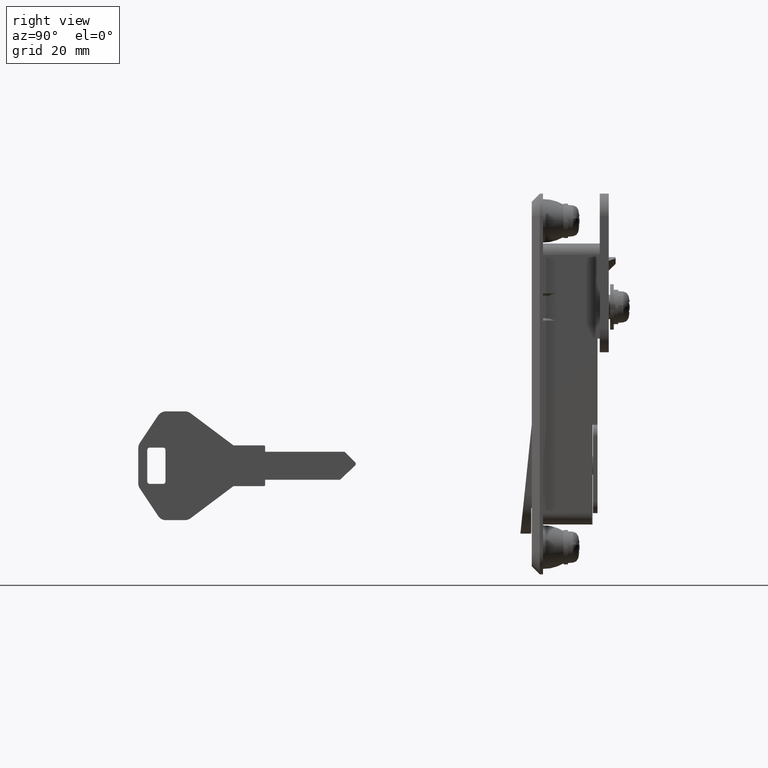
[diagram: clean part render]
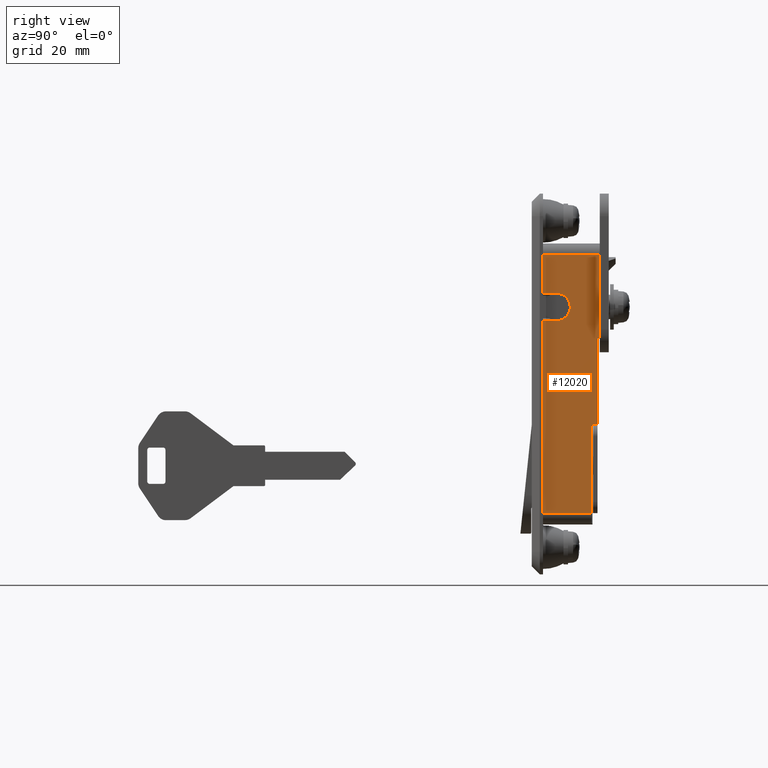
[diagram: same view with one face highlighted and labeled with its STEP entity id]
A machine part, right view. The second image highlights one B-rep face of the part: STEP entity #12020.
In plain terms, the highlighted face is a freeform B-spline surface patch.
Its self-contained STEP definition (entity closure, byte-faithful):
#7672=CARTESIAN_POINT('',(-7.461336553240212,-11.500000000031470,2.200875132956939));
#7673=VERTEX_POINT('',#7672);
#7674=CARTESIAN_POINT('',(-9.500000000003920,-11.499999999997261,2.999999999982210));
#7675=VERTEX_POINT('',#7674);
#7676=CARTESIAN_POINT('',(-7.461336553240212,-11.500000000031466,2.200875132956939));
#7677=CARTESIAN_POINT('',(-8.324045918668960,-11.499999999999126,2.999999999984922));
#7678=CARTESIAN_POINT('',(-9.500000000003920,-11.499999999997261,2.999999999982210));
#7686=(BOUNDED_CURVE()B_SPLINE_CURVE(2,(#7676,#7677,#7678),.UNSPECIFIED.,.F.,.U.)B_SPLINE_CURVE_WITH_KNOTS((3,3),(0.763515324977395,1.0),.UNSPECIFIED.)CURVE()GEOMETRIC_REPRESENTATION_ITEM()RATIONAL_B_SPLINE_CURVE((0.944767897863284,0.904951183457958,1.0))REPRESENTATION_ITEM(''));
#7687=EDGE_CURVE('',#7673,#7675,#7686,.T.);
#7721=CARTESIAN_POINT('',(-9.499999999995680,-11.499999999970139,-2.999999999964235));
#7722=VERTEX_POINT('',#7721);
#7736=CARTESIAN_POINT('',(-6.505595604748608,-11.500000000000570,-0.183145618572876));
#7737=VERTEX_POINT('',#7736);
#7738=CARTESIAN_POINT('',(-9.499999999995680,-11.499999999970139,-2.999999999964235));
#7739=CARTESIAN_POINT('',(-7.767949192439752,-11.500000000000000,-2.999999999983148));
#7740=CARTESIAN_POINT('',(-6.901923788660281,-11.500000000000000,-1.499999999990244));
#7741=CARTESIAN_POINT('',(-6.548720673422954,-11.499999999999998,-0.888234259006970));
#7742=CARTESIAN_POINT('',(-6.505595604748609,-11.500000000000570,-0.183145618572876));
#7750=(BOUNDED_CURVE()B_SPLINE_CURVE(2,(#7738,#7739,#7740,#7741,#7742),.UNSPECIFIED.,.F.,.U.)B_SPLINE_CURVE_WITH_KNOTS((3,2,3),(0.0,0.333333333333333,0.480995922515333),.UNSPECIFIED.)CURVE()GEOMETRIC_REPRESENTATION_ITEM()RATIONAL_B_SPLINE_CURVE((1.0,0.866025403784330,1.0,0.940650892714544,0.933883642513552))REPRESENTATION_ITEM(''));
#7751=EDGE_CURVE('',#7722,#7737,#7750,.T.);
#7844=CARTESIAN_POINT('',(-6.505595604748608,-11.500000000000572,-0.183145618572876));
#7845=CARTESIAN_POINT('',(-6.450475029979614,-11.500000000000000,0.718067812943795));
#7846=CARTESIAN_POINT('',(-6.901923788662241,-11.500000000000000,1.499999999994433));
#7847=CARTESIAN_POINT('',(-7.128659119388681,-11.500000000000002,1.892717112682770));
#7848=CARTESIAN_POINT('',(-7.461336553240213,-11.500000000031470,2.200875132956938));
#7856=(BOUNDED_CURVE()B_SPLINE_CURVE(2,(#7844,#7845,#7846,#7847,#7848),.UNSPECIFIED.,.F.,.U.)B_SPLINE_CURVE_WITH_KNOTS((3,2,3),(0.480995922515333,0.666666666666667,0.763515324977395),.UNSPECIFIED.)CURVE()GEOMETRIC_REPRESENTATION_ITEM()RATIONAL_B_SPLINE_CURVE((0.933883642513552,0.925374511069786,1.0,0.961074220326372,0.944767897863283))REPRESENTATION_ITEM(''));
#7857=EDGE_CURVE('',#7737,#7673,#7856,.T.);
#9687=CARTESIAN_POINT('',(-12.500000000000000,-11.500000000000000,11.500000000000400));
#9688=VERTEX_POINT('',#9687);
#9704=CARTESIAN_POINT('',(0.0,-11.500000000000000,11.500000000000400));
#9705=VERTEX_POINT('',#9704);
#9706=CARTESIAN_POINT('',(0.0,-11.500000000000000,11.500000000000400));
#9707=CARTESIAN_POINT('',(-12.500000000000000,-11.500000000000000,11.500000000000400));
#9708=QUASI_UNIFORM_CURVE('',1,(#9706,#9707),.UNSPECIFIED.,.F.,.U.);
#9709=EDGE_CURVE('',#9705,#9688,#9708,.T.);
#9809=CARTESIAN_POINT('',(-1.800000000000095,-11.500000000000000,-45.500000000000000));
#9810=VERTEX_POINT('',#9809);
#9826=CARTESIAN_POINT('',(-12.500000000000000,-11.500000000000000,-45.500000000000000));
#9827=VERTEX_POINT('',#9826);
#9828=CARTESIAN_POINT('',(-12.500000000000000,-11.500000000000000,-45.500000000000000));
#9829=CARTESIAN_POINT('',(-1.800000000000095,-11.500000000000000,-45.500000000000000));
#9830=QUASI_UNIFORM_CURVE('',1,(#9828,#9829),.UNSPECIFIED.,.F.,.U.);
#9831=EDGE_CURVE('',#9827,#9810,#9830,.T.);
#10492=CARTESIAN_POINT('',(-12.500000000000000,-11.500000000000000,-3.000000000009325));
#10493=VERTEX_POINT('',#10492);
#10494=CARTESIAN_POINT('',(-12.500000000000000,-11.500000000000000,-3.000000000009325));
#10495=CARTESIAN_POINT('',(-9.499999999995680,-11.499999999970139,-2.999999999964235));
#10496=QUASI_UNIFORM_CURVE('',1,(#10494,#10495),.UNSPECIFIED.,.F.,.U.);
#10497=EDGE_CURVE('',#10493,#7722,#10496,.T.);
#10528=CARTESIAN_POINT('',(-12.500000000000000,-11.500000000000000,2.999999999981980));
#10529=VERTEX_POINT('',#10528);
#10530=CARTESIAN_POINT('',(-9.500000000003920,-11.499999999997261,2.999999999982210));
#10531=CARTESIAN_POINT('',(-12.500000000000000,-11.500000000000000,2.999999999981980));
#10532=QUASI_UNIFORM_CURVE('',1,(#10530,#10531),.UNSPECIFIED.,.F.,.U.);
#10533=EDGE_CURVE('',#7675,#10529,#10532,.T.);
#11077=CARTESIAN_POINT('',(-0.500000000000000,-11.500000000000000,-25.999999999999599));
#11078=VERTEX_POINT('',#11077);
#11084=CARTESIAN_POINT('',(-1.800000000000095,-11.500000000000000,-25.999999999999599));
#11085=VERTEX_POINT('',#11084);
#11086=CARTESIAN_POINT('',(-0.500000000000000,-11.500000000000000,-25.999999999999599));
#11087=CARTESIAN_POINT('',(-1.800000000000095,-11.500000000000000,-25.999999999999599));
#11088=QUASI_UNIFORM_CURVE('',1,(#11086,#11087),.UNSPECIFIED.,.F.,.U.);
#11089=EDGE_CURVE('',#11078,#11085,#11088,.T.);
#11135=CARTESIAN_POINT('',(-0.500000000000000,-11.500000000000000,-6.999999999999600));
#11136=VERTEX_POINT('',#11135);
#11142=CARTESIAN_POINT('',(-0.500000000000000,-11.500000000000000,-6.999999999999600));
#11143=CARTESIAN_POINT('',(-0.500000000000000,-11.500000000000000,-25.999999999999599));
#11144=QUASI_UNIFORM_CURVE('',1,(#11142,#11143),.UNSPECIFIED.,.F.,.U.);
#11145=EDGE_CURVE('',#11136,#11078,#11144,.T.);
#11805=CARTESIAN_POINT('',(0.0,-11.500000000000000,-6.999999999999600));
#11806=VERTEX_POINT('',#11805);
#11807=CARTESIAN_POINT('',(0.0,-11.500000000000000,11.500000000000400));
#11808=CARTESIAN_POINT('',(0.0,-11.500000000000000,-6.999999999999600));
#11809=QUASI_UNIFORM_CURVE('',1,(#11807,#11808),.UNSPECIFIED.,.F.,.U.);
#11810=EDGE_CURVE('',#9705,#11806,#11809,.T.);
#11901=CARTESIAN_POINT('',(0.0,-11.500000000000000,-6.999999999999600));
#11902=CARTESIAN_POINT('',(-0.500000000000000,-11.500000000000000,-6.999999999999600));
#11903=QUASI_UNIFORM_CURVE('',1,(#11901,#11902),.UNSPECIFIED.,.F.,.U.);
#11904=EDGE_CURVE('',#11806,#11136,#11903,.T.);
#11924=CARTESIAN_POINT('',(-12.500000000000000,-11.500000000000000,-45.500000000000000));
#11925=CARTESIAN_POINT('',(-12.500000000000000,-11.500000000000000,-3.000000000009325));
#11926=QUASI_UNIFORM_CURVE('',1,(#11924,#11925),.UNSPECIFIED.,.F.,.U.);
#11927=EDGE_CURVE('',#9827,#10493,#11926,.T.);
#11932=CARTESIAN_POINT('',(-12.500000000000000,-11.500000000000000,2.999999999981980));
#11933=CARTESIAN_POINT('',(-12.500000000000000,-11.500000000000000,11.500000000000400));
#11934=QUASI_UNIFORM_CURVE('',1,(#11932,#11933),.UNSPECIFIED.,.F.,.U.);
#11935=EDGE_CURVE('',#10529,#9688,#11934,.T.);
#11995=CARTESIAN_POINT('',(-13.124374975772570,-11.500000000000000,-48.347149889522960));
#11996=CARTESIAN_POINT('',(0.624375311048701,-11.500000000000000,-48.347149889522960));
#11997=CARTESIAN_POINT('',(-13.124374975772580,-11.500000000000000,14.347151418382500));
#11998=CARTESIAN_POINT('',(0.624375311048701,-11.500000000000000,14.347151418382500));
#11999=B_SPLINE_SURFACE_WITH_KNOTS('',1,1,((#11995,#11997),(#11996,#11998)),.UNSPECIFIED.,.F.,.F.,.U.,(2,2),(2,2),(0.0,13.748750286821281),(0.0,62.694301307905462),.UNSPECIFIED.);
#12000=ORIENTED_EDGE('',*,*,#11927,.F.);
#12001=ORIENTED_EDGE('',*,*,#9831,.T.);
#12002=CARTESIAN_POINT('',(-1.800000000000095,-11.500000000000000,-25.999999999999599));
#12003=CARTESIAN_POINT('',(-1.800000000000095,-11.500000000000000,-45.500000000000000));
#12004=QUASI_UNIFORM_CURVE('',1,(#12002,#12003),.UNSPECIFIED.,.F.,.U.);
#12005=EDGE_CURVE('',#11085,#9810,#12004,.T.);
#12006=ORIENTED_EDGE('',*,*,#12005,.F.);
#12007=ORIENTED_EDGE('',*,*,#11089,.F.);
#12008=ORIENTED_EDGE('',*,*,#11145,.F.);
#12009=ORIENTED_EDGE('',*,*,#11904,.F.);
#12010=ORIENTED_EDGE('',*,*,#11810,.F.);
#12011=ORIENTED_EDGE('',*,*,#9709,.T.);
#12012=ORIENTED_EDGE('',*,*,#11935,.F.);
#12013=ORIENTED_EDGE('',*,*,#10533,.F.);
#12014=ORIENTED_EDGE('',*,*,#7687,.F.);
#12015=ORIENTED_EDGE('',*,*,#7857,.F.);
#12016=ORIENTED_EDGE('',*,*,#7751,.F.);
#12017=ORIENTED_EDGE('',*,*,#10497,.F.);
#12018=EDGE_LOOP('',(#12000,#12001,#12006,#12007,#12008,#12009,#12010,#12011,#12012,#12013,#12014,#12015,#12016,#12017));
#12019=FACE_OUTER_BOUND('',#12018,.T.);
#12020=ADVANCED_FACE('',(#12019),#11999,.T.);